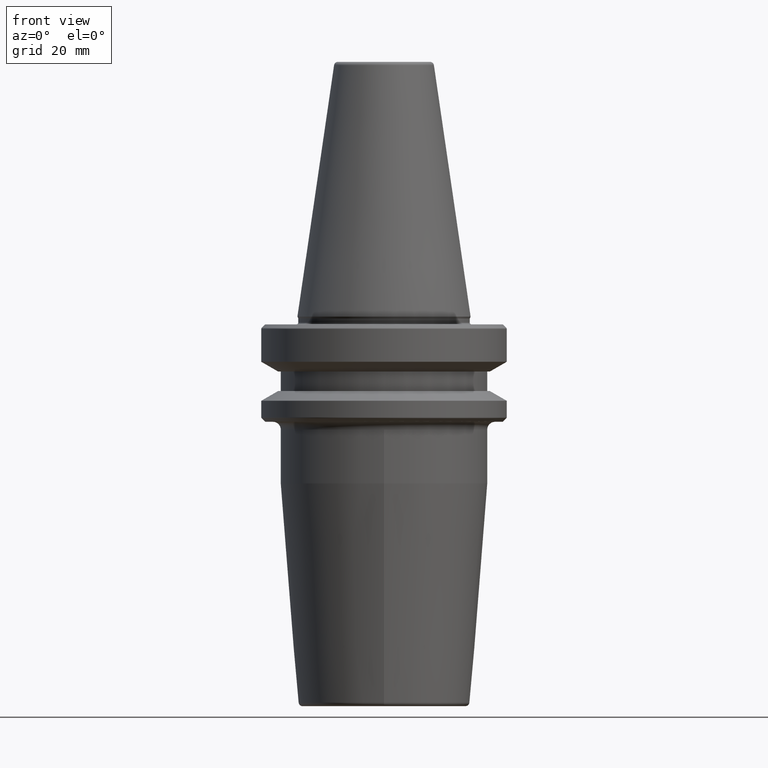
[diagram: clean part render]
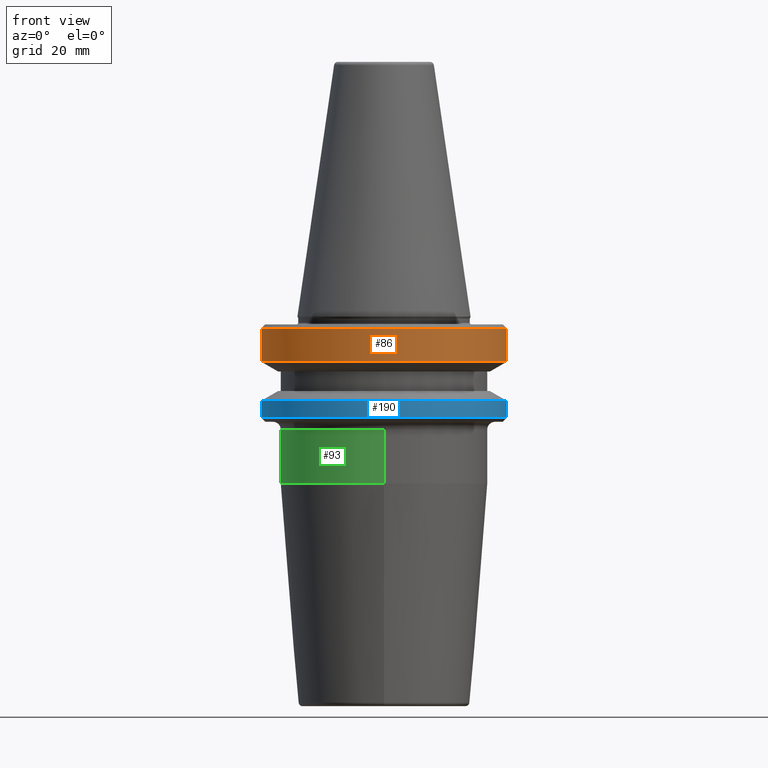
[diagram: same view with three faces highlighted in distinct colors, each labeled with its STEP entity id]
A machine part, front view with three faces highlighted in distinct colors.
Their STEP definitions:

[orange] entity #86 — the highlighted cylindrical surface (partial cylindrical patch) has radius 31.5 mm, axis along (-0, -0, 1).
#63 = DIRECTION ( 'NONE',  ( -0.0000000000000000000, -0.0000000000000000000, 1.000000000000000000 ) ) ;
#83 = LINE ( 'NONE', #519, #302 ) ;
#86 = ADVANCED_FACE ( 'NONE', ( #1226 ), #641, .T. ) ;
#124 = CARTESIAN_POINT ( 'NONE',  ( 0.0000000000000000000, 0.0000000000000000000, -11.59985799368323700 ) ) ;
#132 = DIRECTION ( 'NONE',  ( -0.0000000000000000000, -0.0000000000000000000, 1.000000000000000000 ) ) ;
#144 = AXIS2_PLACEMENT_3D ( 'NONE', #1067, #467, #1178 ) ;
#167 = EDGE_CURVE ( 'NONE', #651, #374, #357, .T. ) ;
#220 = VECTOR ( 'NONE', #63, 1000.000000000000000 ) ;
#240 = DIRECTION ( 'NONE',  ( -0.0000000000000000000, -0.0000000000000000000, 1.000000000000000000 ) ) ;
#242 = ORIENTED_EDGE ( 'NONE', *, *, #975, .F. ) ;
#251 = ORIENTED_EDGE ( 'NONE', *, *, #925, .T. ) ;
#302 = VECTOR ( 'NONE', #240, 1000.000000000000000 ) ;
#357 = CIRCLE ( 'NONE', #982, 31.50000000000000000 ) ;
#374 = VERTEX_POINT ( 'NONE', #931 ) ;
#467 = DIRECTION ( 'NONE',  ( -0.0000000000000000000, -0.0000000000000000000, 1.000000000000000000 ) ) ;
#519 = CARTESIAN_POINT ( 'NONE',  ( 31.50000000000000000, 0.0000000000000000000, 69.75694866325665100 ) ) ;
#552 = ORIENTED_EDGE ( 'NONE', *, *, #1144, .F. ) ;
#586 = VERTEX_POINT ( 'NONE', #865 ) ;
#629 = CARTESIAN_POINT ( 'NONE',  ( -31.50000000000000000, 3.857637417314162700E-015, 69.75694866325665100 ) ) ;
#637 = CIRCLE ( 'NONE', #144, 31.49999999999999300 ) ;
#638 = AXIS2_PLACEMENT_3D ( 'NONE', #805, #132, #1044 ) ;
#641 = CYLINDRICAL_SURFACE ( 'NONE', #638, 31.50000000000000000 ) ;
#651 = VERTEX_POINT ( 'NONE', #677 ) ;
#677 = CARTESIAN_POINT ( 'NONE',  ( -31.50000000000000000, 3.857637417314162700E-015, -11.59985799368323700 ) ) ;
#793 = DIRECTION ( 'NONE',  ( -0.0000000000000000000, -0.0000000000000000000, 1.000000000000000000 ) ) ;
#805 = CARTESIAN_POINT ( 'NONE',  ( 0.0000000000000000000, 0.0000000000000000000, 69.75694866325665100 ) ) ;
#842 = EDGE_LOOP ( 'NONE', ( #242, #996, #251, #552 ) ) ;
#865 = CARTESIAN_POINT ( 'NONE',  ( 31.49999999999999300, 0.0000000000000000000, -3.165685424949243700 ) ) ;
#908 = VERTEX_POINT ( 'NONE', #922 ) ;
#922 = CARTESIAN_POINT ( 'NONE',  ( -31.49999999999999300, 3.857637417314161900E-015, -3.165685424949243700 ) ) ;
#925 = EDGE_CURVE ( 'NONE', #374, #586, #83, .T. ) ;
#931 = CARTESIAN_POINT ( 'NONE',  ( 31.50000000000000000, 0.0000000000000000000, -11.59985799368323700 ) ) ;
#975 = EDGE_CURVE ( 'NONE', #651, #908, #1003, .T. ) ;
#982 = AXIS2_PLACEMENT_3D ( 'NONE', #124, #793, #1107 ) ;
#996 = ORIENTED_EDGE ( 'NONE', *, *, #167, .T. ) ;
#1003 = LINE ( 'NONE', #629, #220 ) ;
#1044 = DIRECTION ( 'NONE',  ( 1.000000000000000000, 0.0000000000000000000, 0.0000000000000000000 ) ) ;
#1067 = CARTESIAN_POINT ( 'NONE',  ( 0.0000000000000000000, 0.0000000000000000000, -3.165685424949243700 ) ) ;
#1107 = DIRECTION ( 'NONE',  ( 1.000000000000000000, 0.0000000000000000000, 0.0000000000000000000 ) ) ;
#1144 = EDGE_CURVE ( 'NONE', #908, #586, #637, .T. ) ;
#1178 = DIRECTION ( 'NONE',  ( 1.000000000000000000, 0.0000000000000000000, 0.0000000000000000000 ) ) ;
#1226 = FACE_OUTER_BOUND ( 'NONE', #842, .T. ) ;

[blue] entity #190 — the highlighted cylindrical surface (partial cylindrical patch) has radius 31.5 mm, axis along (-0, -0, 1).
#24 = VERTEX_POINT ( 'NONE', #701 ) ;
#81 = AXIS2_PLACEMENT_3D ( 'NONE', #755, #186, #861 ) ;
#97 = ORIENTED_EDGE ( 'NONE', *, *, #992, .F. ) ;
#170 = AXIS2_PLACEMENT_3D ( 'NONE', #401, #991, #592 ) ;
#186 = DIRECTION ( 'NONE',  ( -0.0000000000000000000, -0.0000000000000000000, 1.000000000000000000 ) ) ;
#190 = ADVANCED_FACE ( 'NONE', ( #231 ), #422, .T. ) ;
#231 = FACE_OUTER_BOUND ( 'NONE', #468, .T. ) ;
#294 = VERTEX_POINT ( 'NONE', #650 ) ;
#378 = VECTOR ( 'NONE', #1281, 1000.000000000000000 ) ;
#401 = CARTESIAN_POINT ( 'NONE',  ( 0.0000000000000000000, 0.0000000000000000000, 69.75694866325665100 ) ) ;
#413 = VERTEX_POINT ( 'NONE', #1133 ) ;
#422 = CYLINDRICAL_SURFACE ( 'NONE', #170, 31.50000000000000000 ) ;
#468 = EDGE_LOOP ( 'NONE', ( #97, #658, #696, #943 ) ) ;
#476 = DIRECTION ( 'NONE',  ( -0.0000000000000000000, -0.0000000000000000000, 1.000000000000000000 ) ) ;
#580 = EDGE_CURVE ( 'NONE', #413, #294, #627, .T. ) ;
#592 = DIRECTION ( 'NONE',  ( 1.000000000000000000, 0.0000000000000000000, 0.0000000000000000000 ) ) ;
#596 = EDGE_CURVE ( 'NONE', #24, #294, #599, .T. ) ;
#599 = CIRCLE ( 'NONE', #669, 31.50000000000000000 ) ;
#627 = LINE ( 'NONE', #810, #378 ) ;
#650 = CARTESIAN_POINT ( 'NONE',  ( 31.50000000000000000, 0.0000000000000000000, -21.60014200631675500 ) ) ;
#658 = ORIENTED_EDGE ( 'NONE', *, *, #1135, .T. ) ;
#669 = AXIS2_PLACEMENT_3D ( 'NONE', #1075, #476, #1184 ) ;
#695 = VECTOR ( 'NONE', #1149, 1000.000000000000000 ) ;
#696 = ORIENTED_EDGE ( 'NONE', *, *, #580, .T. ) ;
#701 = CARTESIAN_POINT ( 'NONE',  ( -31.50000000000000000, 3.857637417314162700E-015, -21.60014200631675500 ) ) ;
#728 = LINE ( 'NONE', #831, #695 ) ;
#755 = CARTESIAN_POINT ( 'NONE',  ( 0.0000000000000000000, 0.0000000000000000000, -25.83431457505076900 ) ) ;
#810 = CARTESIAN_POINT ( 'NONE',  ( 31.50000000000000000, 0.0000000000000000000, 69.75694866325665100 ) ) ;
#831 = CARTESIAN_POINT ( 'NONE',  ( -31.50000000000000000, 3.857637417314162700E-015, 69.75694866325665100 ) ) ;
#861 = DIRECTION ( 'NONE',  ( 1.000000000000000000, 0.0000000000000000000, 0.0000000000000000000 ) ) ;
#943 = ORIENTED_EDGE ( 'NONE', *, *, #596, .F. ) ;
#991 = DIRECTION ( 'NONE',  ( -0.0000000000000000000, -0.0000000000000000000, 1.000000000000000000 ) ) ;
#992 = EDGE_CURVE ( 'NONE', #1237, #24, #728, .T. ) ;
#1075 = CARTESIAN_POINT ( 'NONE',  ( 0.0000000000000000000, 0.0000000000000000000, -21.60014200631675500 ) ) ;
#1084 = CARTESIAN_POINT ( 'NONE',  ( -31.50000000000000000, 3.857637417314162700E-015, -25.83431457505076900 ) ) ;
#1133 = CARTESIAN_POINT ( 'NONE',  ( 31.50000000000000000, 0.0000000000000000000, -25.83431457505076900 ) ) ;
#1135 = EDGE_CURVE ( 'NONE', #1237, #413, #1225, .T. ) ;
#1149 = DIRECTION ( 'NONE',  ( -0.0000000000000000000, -0.0000000000000000000, 1.000000000000000000 ) ) ;
#1184 = DIRECTION ( 'NONE',  ( 1.000000000000000000, 0.0000000000000000000, 0.0000000000000000000 ) ) ;
#1225 = CIRCLE ( 'NONE', #81, 31.50000000000000000 ) ;
#1237 = VERTEX_POINT ( 'NONE', #1084 ) ;
#1281 = DIRECTION ( 'NONE',  ( -0.0000000000000000000, -0.0000000000000000000, 1.000000000000000000 ) ) ;

[green] entity #93 — the highlighted cylindrical surface (partial cylindrical patch) has radius 26.5 mm, axis along (-0, 0, -1).
#11 = LINE ( 'NONE', #1112, #206 ) ;
#39 = ORIENTED_EDGE ( 'NONE', *, *, #764, .F. ) ;
#53 = LINE ( 'NONE', #619, #788 ) ;
#93 = ADVANCED_FACE ( 'NONE', ( #388 ), #133, .T. ) ;
#107 = DIRECTION ( 'NONE',  ( 0.0000000000000000000, 0.0000000000000000000, -1.000000000000000000 ) ) ;
#133 = CYLINDRICAL_SURFACE ( 'NONE', #705, 26.49999999999999600 ) ;
#176 = ORIENTED_EDGE ( 'NONE', *, *, #1059, .T. ) ;
#205 = CARTESIAN_POINT ( 'NONE',  ( -26.49999999999999600, 7.381432761984042800E-017, -28.99999999999999600 ) ) ;
#206 = VECTOR ( 'NONE', #218, 1000.000000000000000 ) ;
#215 = CARTESIAN_POINT ( 'NONE',  ( 3.245314017740485800E-015, 26.50000000000000000, -42.82207868720853800 ) ) ;
#218 = DIRECTION ( 'NONE',  ( -0.0000000000000000000, 3.690716380992023300E-017, -1.000000000000000000 ) ) ;
#219 = VERTEX_POINT ( 'NONE', #215 ) ;
#267 = ORIENTED_EDGE ( 'NONE', *, *, #768, .T. ) ;
#269 = DIRECTION ( 'NONE',  ( 0.0000000000000000000, 0.0000000000000000000, -1.000000000000000000 ) ) ;
#368 = ORIENTED_EDGE ( 'NONE', *, *, #942, .F. ) ;
#388 = FACE_OUTER_BOUND ( 'NONE', #986, .T. ) ;
#411 = DIRECTION ( 'NONE',  ( -0.0000000000000000000, 3.690716380992023300E-017, -1.000000000000000000 ) ) ;
#501 = CARTESIAN_POINT ( 'NONE',  ( 0.0000000000000000000, 5.839480499222532300E-016, -42.82207868720853800 ) ) ;
#542 = CIRCLE ( 'NONE', #867, 26.49999999999999600 ) ;
#573 = AXIS2_PLACEMENT_3D ( 'NONE', #501, #411, #1218 ) ;
#583 = VERTEX_POINT ( 'NONE', #918 ) ;
#593 = VERTEX_POINT ( 'NONE', #1130 ) ;
#598 = CARTESIAN_POINT ( 'NONE',  ( 0.0000000000000000000, 26.49999999999999600, -28.99999999999999600 ) ) ;
#619 = CARTESIAN_POINT ( 'NONE',  ( 3.245314017740485400E-015, -26.49999999999999300, -100.0000000000000000 ) ) ;
#621 = ORIENTED_EDGE ( 'NONE', *, *, #1251, .T. ) ;
#680 = CARTESIAN_POINT ( 'NONE',  ( 0.0000000000000000000, 7.381432761984042800E-017, -28.99999999999999600 ) ) ;
#705 = AXIS2_PLACEMENT_3D ( 'NONE', #708, #1132, #1014 ) ;
#708 = CARTESIAN_POINT ( 'NONE',  ( 0.0000000000000000000, 2.694222958124177200E-015, -100.0000000000000000 ) ) ;
#713 = CIRCLE ( 'NONE', #573, 26.50000000000000000 ) ;
#764 = EDGE_CURVE ( 'NONE', #583, #219, #713, .T. ) ;
#768 = EDGE_CURVE ( 'NONE', #774, #219, #11, .T. ) ;
#774 = VERTEX_POINT ( 'NONE', #598 ) ;
#779 = DIRECTION ( 'NONE',  ( -1.000000000000000000, 0.0000000000000000000, 0.0000000000000000000 ) ) ;
#788 = VECTOR ( 'NONE', #1140, 1000.000000000000000 ) ;
#848 = CARTESIAN_POINT ( 'NONE',  ( 0.0000000000000000000, 7.381432761984042800E-017, -28.99999999999999600 ) ) ;
#867 = AXIS2_PLACEMENT_3D ( 'NONE', #680, #107, #779 ) ;
#886 = AXIS2_PLACEMENT_3D ( 'NONE', #848, #269, #953 ) ;
#905 = CIRCLE ( 'NONE', #886, 26.49999999999999600 ) ;
#918 = CARTESIAN_POINT ( 'NONE',  ( 0.0000000000000000000, -26.50000000000000000, -42.82207868720853800 ) ) ;
#942 = EDGE_CURVE ( 'NONE', #593, #583, #53, .T. ) ;
#953 = DIRECTION ( 'NONE',  ( -1.000000000000000000, 0.0000000000000000000, 0.0000000000000000000 ) ) ;
#986 = EDGE_LOOP ( 'NONE', ( #368, #176, #621, #267, #39 ) ) ;
#1014 = DIRECTION ( 'NONE',  ( 0.0000000000000000000, 1.000000000000000000, 0.0000000000000000000 ) ) ;
#1059 = EDGE_CURVE ( 'NONE', #593, #1264, #905, .T. ) ;
#1112 = CARTESIAN_POINT ( 'NONE',  ( 0.0000000000000000000, 26.50000000000000000, -100.0000000000000000 ) ) ;
#1130 = CARTESIAN_POINT ( 'NONE',  ( 3.245314017740485400E-015, -26.49999999999999600, -28.99999999999999600 ) ) ;
#1132 = DIRECTION ( 'NONE',  ( -0.0000000000000000000, 3.690716380992023300E-017, -1.000000000000000000 ) ) ;
#1140 = DIRECTION ( 'NONE',  ( -0.0000000000000000000, 3.690716380992023300E-017, -1.000000000000000000 ) ) ;
#1218 = DIRECTION ( 'NONE',  ( 0.0000000000000000000, 1.000000000000000000, 0.0000000000000000000 ) ) ;
#1251 = EDGE_CURVE ( 'NONE', #1264, #774, #542, .T. ) ;
#1264 = VERTEX_POINT ( 'NONE', #205 ) ;